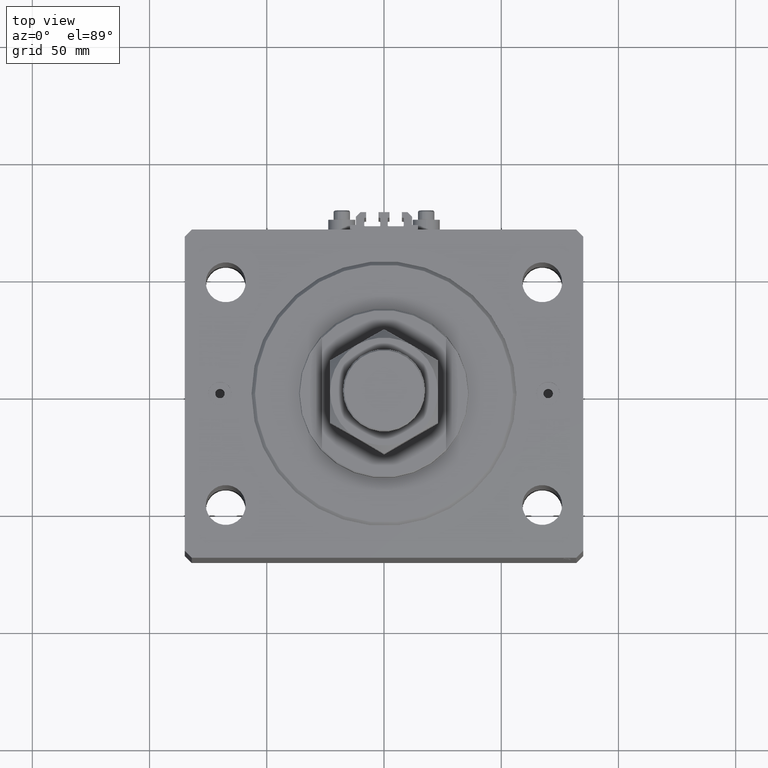
[diagram: clean part render]
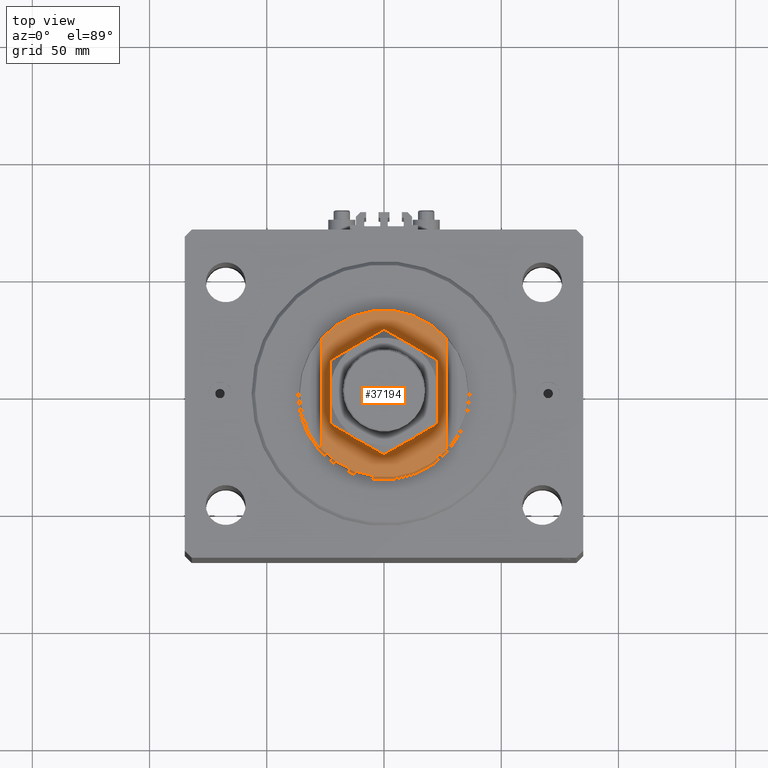
[diagram: same view with one face highlighted and labeled with its STEP entity id]
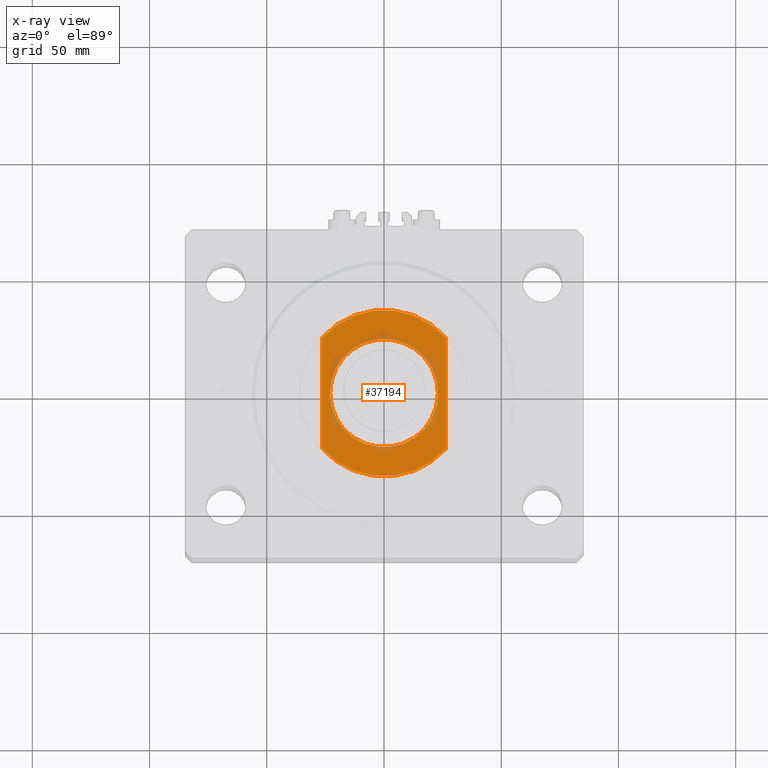
[diagram: x-ray of the same camera — body ghosted, the highlighted face saturated]
A machine part, top view. The second image highlights one B-rep face of the part: STEP entity #37194.
The next image is the same camera in x-ray: the body ghosted, the highlighted face saturated — about 12% of this face is hidden behind the body in this view.
In plain terms, the highlighted planar face has unit normal (0, 0, 1).
Its self-contained STEP definition (entity closure, byte-faithful):
#86 = DIRECTION ( 'NONE',  ( 0.000000000000000000, 0.000000000000000000, -1.000000000000000000 ) ) ;
#506 = CARTESIAN_POINT ( 'NONE',  ( 0.000000000000000000, 0.000000000000000000, -8.000000000000000000 ) ) ;
#772 = DIRECTION ( 'NONE',  ( -0.000000000000000000, -0.000000000000000000, 1.000000000000000000 ) ) ;
#820 = DIRECTION ( 'NONE',  ( -1.000000000000000000, 0.000000000000000000, 0.000000000000000000 ) ) ;
#1551 = CIRCLE ( 'NONE', #29259, 35.49999999999996447 ) ;
#1881 = CARTESIAN_POINT ( 'NONE',  ( 0.000000000000000000, 0.000000000000000000, -8.000000000000000000 ) ) ;
#5831 = CARTESIAN_POINT ( 'NONE',  ( -26.50000000000000711, -23.62202362203537476, -8.000000000000000000 ) ) ;
#5834 = DIRECTION ( 'NONE',  ( -1.000000000000000000, 0.000000000000000000, 0.000000000000000000 ) ) ;
#7763 = CARTESIAN_POINT ( 'NONE',  ( 26.50000000000000000, -23.62202362203536765, -8.000000000000000000 ) ) ;
#7888 = FACE_OUTER_BOUND ( 'NONE', #16235, .T. ) ;
#10017 = ORIENTED_EDGE ( 'NONE', *, *, #36295, .T. ) ;
#10120 = AXIS2_PLACEMENT_3D ( 'NONE', #1881, #39765, #5834 ) ;
#10854 = DIRECTION ( 'NONE',  ( -0.000000000000000000, -1.000000000000000000, -0.000000000000000000 ) ) ;
#11625 = ORIENTED_EDGE ( 'NONE', *, *, #41094, .T. ) ;
#11682 = DIRECTION ( 'NONE',  ( 0.000000000000000000, 0.000000000000000000, -1.000000000000000000 ) ) ;
#11904 = EDGE_CURVE ( 'NONE', #28657, #13619, #36918, .T. ) ;
#12329 = CARTESIAN_POINT ( 'NONE',  ( -23.00000000000001776, 0.000000000000000000, -8.000000000000000000 ) ) ;
#12728 = ORIENTED_EDGE ( 'NONE', *, *, #11904, .T. ) ;
#13619 = VERTEX_POINT ( 'NONE', #33732 ) ;
#13778 = LINE ( 'NONE', #32335, #29800 ) ;
#14088 = CARTESIAN_POINT ( 'NONE',  ( -26.50000000000000000, -36.36963018783666257, -8.000000000000000000 ) ) ;
#14126 = ORIENTED_EDGE ( 'NONE', *, *, #25438, .F. ) ;
#14853 = CARTESIAN_POINT ( 'NONE',  ( 0.000000000000000000, 0.000000000000000000, -8.000000000000000000 ) ) ;
#15340 = FACE_BOUND ( 'NONE', #27475, .T. ) ;
#16235 = EDGE_LOOP ( 'NONE', ( #12728, #45501, #11625, #14126 ) ) ;
#17493 = VERTEX_POINT ( 'NONE', #12329 ) ;
#17849 = VERTEX_POINT ( 'NONE', #7763 ) ;
#21166 = VERTEX_POINT ( 'NONE', #5831 ) ;
#22017 = EDGE_CURVE ( 'NONE', #13619, #17849, #13778, .T. ) ;
#22110 = DIRECTION ( 'NONE',  ( -1.000000000000000000, 0.000000000000000000, 0.000000000000000000 ) ) ;
#22421 = CARTESIAN_POINT ( 'NONE',  ( 0.000000000000000000, 0.000000000000000000, -8.000000000000000000 ) ) ;
#22776 = ORIENTED_EDGE ( 'NONE', *, *, #33115, .T. ) ;
#25438 = EDGE_CURVE ( 'NONE', #28657, #21166, #40559, .T. ) ;
#25981 = AXIS2_PLACEMENT_3D ( 'NONE', #42140, #772, #41901 ) ;
#26675 = AXIS2_PLACEMENT_3D ( 'NONE', #22421, #86, #820 ) ;
#27475 = EDGE_LOOP ( 'NONE', ( #10017, #22776 ) ) ;
#28657 = VERTEX_POINT ( 'NONE', #32377 ) ;
#29259 = AXIS2_PLACEMENT_3D ( 'NONE', #506, #11682, #22110 ) ;
#29800 = VECTOR ( 'NONE', #40012, 1000.000000000000000 ) ;
#32335 = CARTESIAN_POINT ( 'NONE',  ( 26.50000000000000000, -36.36963018783666257, -8.000000000000000000 ) ) ;
#32377 = CARTESIAN_POINT ( 'NONE',  ( -26.50000000000000000, 23.62202362203536765, -8.000000000000000000 ) ) ;
#33115 = EDGE_CURVE ( 'NONE', #46358, #17493, #33823, .T. ) ;
#33732 = CARTESIAN_POINT ( 'NONE',  ( 26.50000000000000000, 23.62202362203536765, -8.000000000000000000 ) ) ;
#33823 = CIRCLE ( 'NONE', #25981, 23.00000000000001776 ) ;
#36295 = EDGE_CURVE ( 'NONE', #17493, #46358, #37778, .T. ) ;
#36918 = CIRCLE ( 'NONE', #26675, 35.49999999999996447 ) ;
#37194 = ADVANCED_FACE ( 'NONE', ( #15340, #7888 ), #45756, .T. ) ;
#37778 = CIRCLE ( 'NONE', #10120, 23.00000000000001776 ) ;
#38304 = VECTOR ( 'NONE', #10854, 1000.000000000000000 ) ;
#39765 = DIRECTION ( 'NONE',  ( -0.000000000000000000, -0.000000000000000000, 1.000000000000000000 ) ) ;
#40012 = DIRECTION ( 'NONE',  ( 0.000000000000000000, -1.000000000000000000, -0.000000000000000000 ) ) ;
#40559 = LINE ( 'NONE', #14088, #38304 ) ;
#41079 = DIRECTION ( 'NONE',  ( -1.000000000000000000, 0.000000000000000000, -0.000000000000000000 ) ) ;
#41094 = EDGE_CURVE ( 'NONE', #17849, #21166, #1551, .T. ) ;
#41788 = AXIS2_PLACEMENT_3D ( 'NONE', #14853, #48977, #41079 ) ;
#41901 = DIRECTION ( 'NONE',  ( -1.000000000000000000, 0.000000000000000000, 0.000000000000000000 ) ) ;
#42140 = CARTESIAN_POINT ( 'NONE',  ( 0.000000000000000000, 0.000000000000000000, -8.000000000000000000 ) ) ;
#45501 = ORIENTED_EDGE ( 'NONE', *, *, #22017, .T. ) ;
#45756 = PLANE ( 'NONE',  #41788 ) ;
#46297 = CARTESIAN_POINT ( 'NONE',  ( 23.00000000000001776, 2.816687638038914718E-15, -8.000000000000000000 ) ) ;
#46358 = VERTEX_POINT ( 'NONE', #46297 ) ;
#48977 = DIRECTION ( 'NONE',  ( 0.000000000000000000, 0.000000000000000000, -1.000000000000000000 ) ) ;